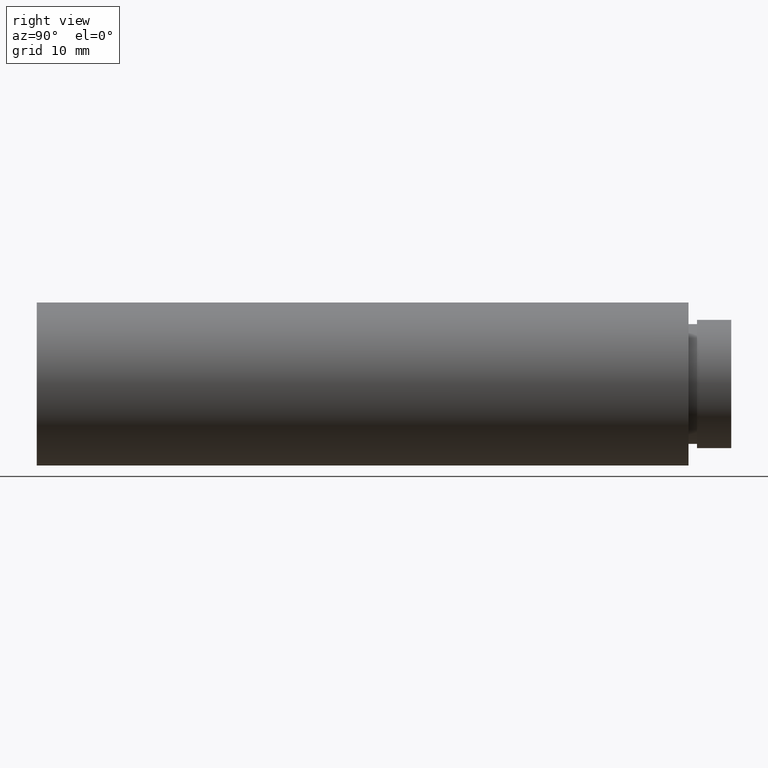
[diagram: clean part render]
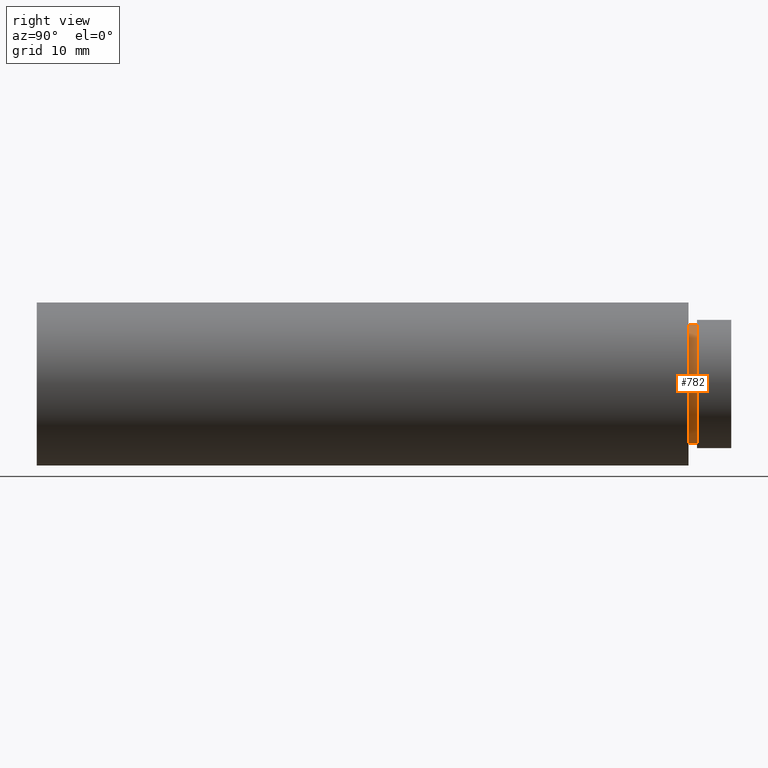
[diagram: same view with one face highlighted and labeled with its STEP entity id]
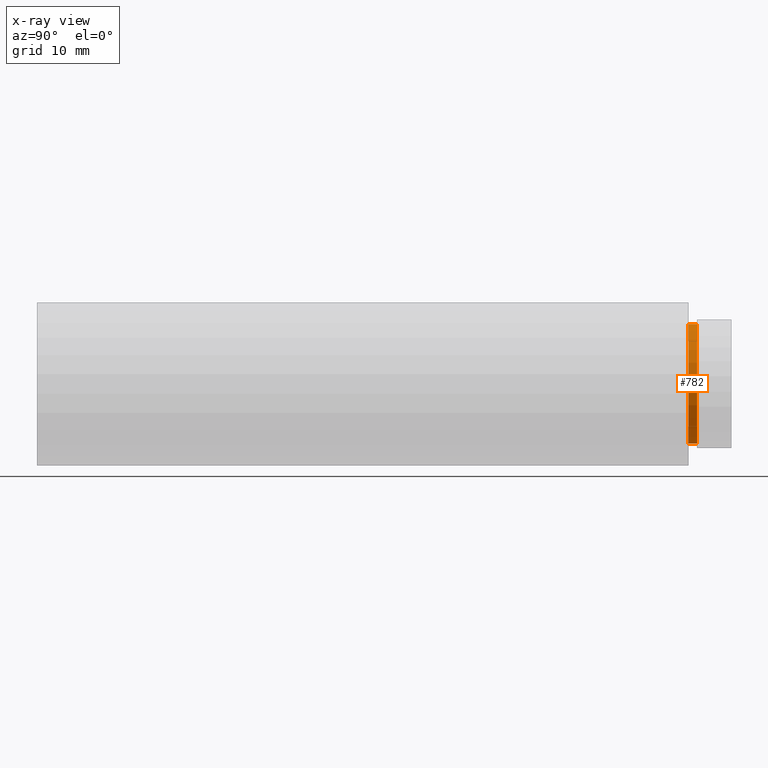
[diagram: x-ray of the same camera — body ghosted, the highlighted face saturated]
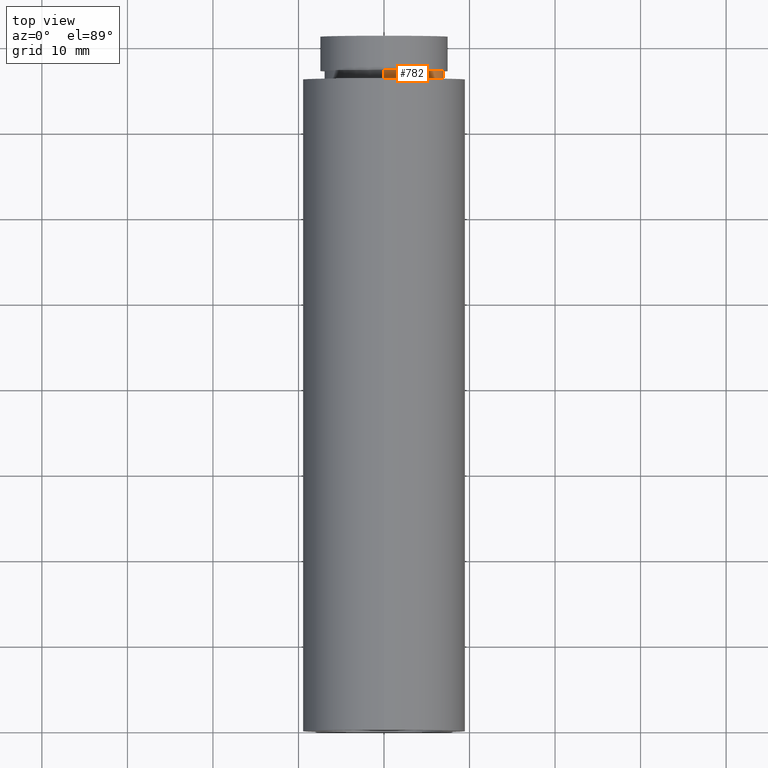
[diagram: same view with one face highlighted and labeled with its STEP entity id]
A machine part, right view. The second image highlights one B-rep face of the part: STEP entity #782.
The next image is the same camera in x-ray: the body ghosted, the highlighted face saturated — about 0% of this face is hidden behind the body in this view.
A second angle (top view) of the same face is appended — the face is thin or edge-on in the first view.
In plain terms, the highlighted cylindrical surface (partial cylindrical patch) has radius 7 mm, axis along (-0, 1, -0).
Its self-contained STEP definition (entity closure, byte-faithful):
#21 = CARTESIAN_POINT ( 'NONE',  ( 0.0000000000000000000, 76.20000000000000300, 7.000000000000009800 ) ) ;
#26 = VERTEX_POINT ( 'NONE', #21 ) ;
#30 = VECTOR ( 'NONE', #48, 1000.000000000000000 ) ;
#48 = DIRECTION ( 'NONE',  ( -0.0000000000000000000, 1.000000000000000000, -0.0000000000000000000 ) ) ;
#94 = DIRECTION ( 'NONE',  ( 0.0000000000000000000, 0.0000000000000000000, 1.000000000000000000 ) ) ;
#214 = LINE ( 'NONE', #423, #30 ) ;
#221 = DIRECTION ( 'NONE',  ( -0.0000000000000000000, 1.000000000000000000, -0.0000000000000000000 ) ) ;
#226 = AXIS2_PLACEMENT_3D ( 'NONE', #362, #243, #357 ) ;
#243 = DIRECTION ( 'NONE',  ( -0.0000000000000000000, 1.000000000000000000, -0.0000000000000000000 ) ) ;
#271 = VERTEX_POINT ( 'NONE', #598 ) ;
#280 = CARTESIAN_POINT ( 'NONE',  ( 0.0000000000000000000, 161.3761669434274500, 7.000000000000009800 ) ) ;
#327 = EDGE_CURVE ( 'NONE', #26, #271, #562, .T. ) ;
#334 = DIRECTION ( 'NONE',  ( -0.0000000000000000000, 1.000000000000000000, -0.0000000000000000000 ) ) ;
#357 = DIRECTION ( 'NONE',  ( 0.0000000000000000000, 0.0000000000000000000, 1.000000000000000000 ) ) ;
#362 = CARTESIAN_POINT ( 'NONE',  ( 0.0000000000000000000, 77.20000000000000300, 0.0000000000000000000 ) ) ;
#377 = ORIENTED_EDGE ( 'NONE', *, *, #777, .F. ) ;
#410 = CIRCLE ( 'NONE', #226, 7.000000000000009800 ) ;
#423 = CARTESIAN_POINT ( 'NONE',  ( 8.572527594031484000E-016, 161.3761669434274500, -7.000000000000009800 ) ) ;
#455 = AXIS2_PLACEMENT_3D ( 'NONE', #648, #221, #94 ) ;
#457 = ORIENTED_EDGE ( 'NONE', *, *, #577, .T. ) ;
#524 = EDGE_CURVE ( 'NONE', #810, #745, #410, .T. ) ;
#528 = EDGE_LOOP ( 'NONE', ( #723, #457, #775, #377 ) ) ;
#562 = CIRCLE ( 'NONE', #728, 7.000000000000009800 ) ;
#577 = EDGE_CURVE ( 'NONE', #271, #745, #214, .T. ) ;
#597 = CYLINDRICAL_SURFACE ( 'NONE', #455, 7.000000000000009800 ) ;
#598 = CARTESIAN_POINT ( 'NONE',  ( 8.572527594031484000E-016, 76.20000000000000300, -7.000000000000009800 ) ) ;
#601 = DIRECTION ( 'NONE',  ( 0.0000000000000000000, 0.0000000000000000000, 1.000000000000000000 ) ) ;
#607 = VECTOR ( 'NONE', #334, 1000.000000000000000 ) ;
#611 = CARTESIAN_POINT ( 'NONE',  ( 0.0000000000000000000, 77.20000000000000300, 7.000000000000009800 ) ) ;
#621 = FACE_OUTER_BOUND ( 'NONE', #528, .T. ) ;
#648 = CARTESIAN_POINT ( 'NONE',  ( 0.0000000000000000000, 161.3761669434274500, 0.0000000000000000000 ) ) ;
#721 = DIRECTION ( 'NONE',  ( -0.0000000000000000000, 1.000000000000000000, -0.0000000000000000000 ) ) ;
#723 = ORIENTED_EDGE ( 'NONE', *, *, #327, .T. ) ;
#728 = AXIS2_PLACEMENT_3D ( 'NONE', #790, #721, #601 ) ;
#745 = VERTEX_POINT ( 'NONE', #768 ) ;
#768 = CARTESIAN_POINT ( 'NONE',  ( 8.572527594031484000E-016, 77.20000000000000300, -7.000000000000009800 ) ) ;
#773 = LINE ( 'NONE', #280, #607 ) ;
#775 = ORIENTED_EDGE ( 'NONE', *, *, #524, .F. ) ;
#777 = EDGE_CURVE ( 'NONE', #26, #810, #773, .T. ) ;
#782 = ADVANCED_FACE ( 'NONE', ( #621 ), #597, .T. ) ;
#790 = CARTESIAN_POINT ( 'NONE',  ( 0.0000000000000000000, 76.20000000000000300, 0.0000000000000000000 ) ) ;
#810 = VERTEX_POINT ( 'NONE', #611 ) ;